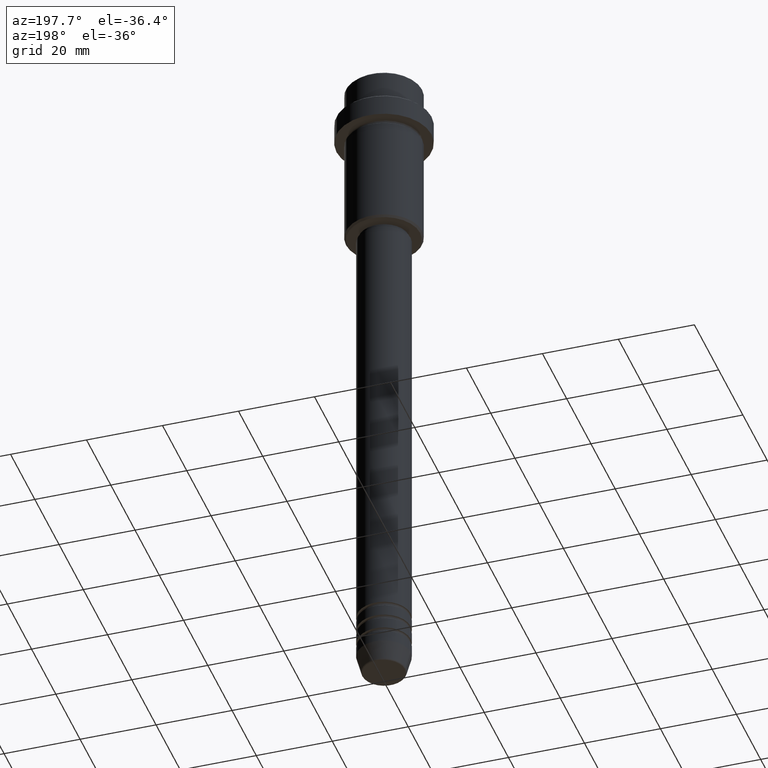
[diagram: clean part render]
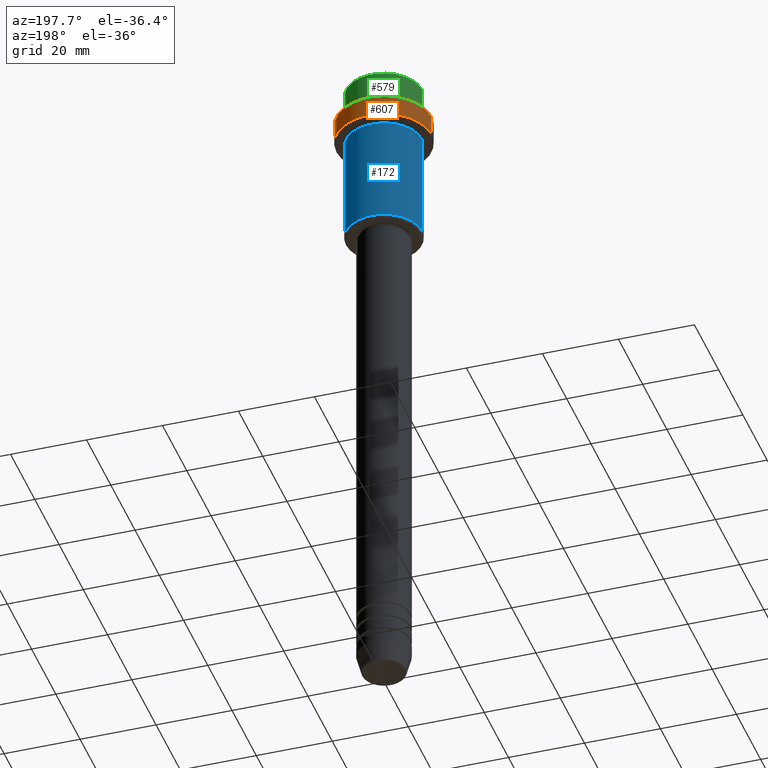
[diagram: same view with three faces highlighted in distinct colors, each labeled with its STEP entity id]
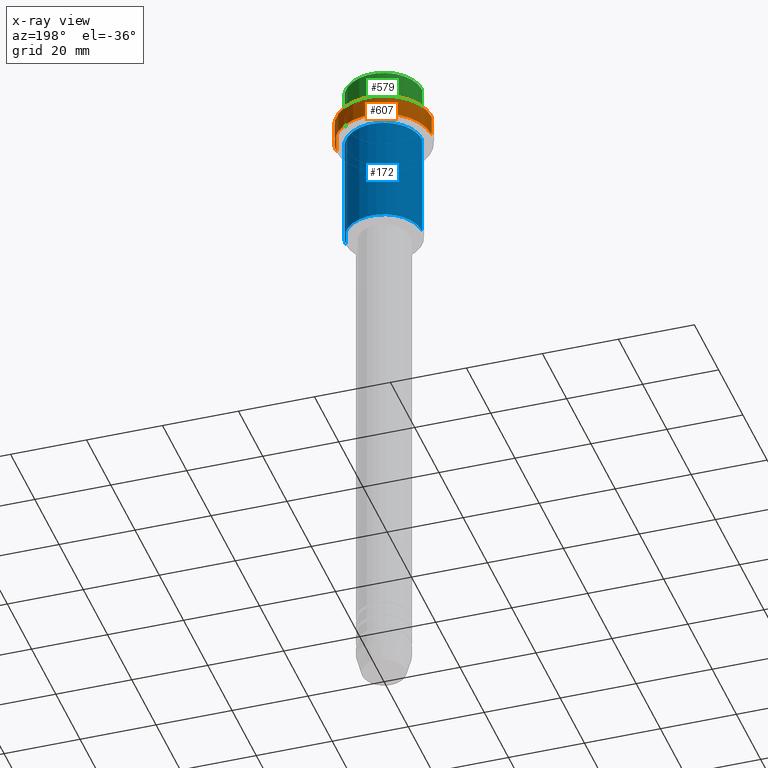
[diagram: x-ray of the same camera — body ghosted, the three highlighted faces saturated]
A machine part, auxiliary view with three faces highlighted in distinct colors.
The next image is the same camera in x-ray (body ghosted, the three faces saturated) — at least one of them is partly hidden behind the body in this view.
Their STEP definitions:

[orange] entity #607 — the highlighted cylindrical surface (partial cylindrical patch) has radius 12.5 mm, axis along (-0, -0, 1).
#55 = CARTESIAN_POINT ( 'NONE',  ( -12.50000000000000000, 1.530808498934191521E-15, -15.00000000000000178 ) ) ;
#150 = CARTESIAN_POINT ( 'NONE',  ( 0.000000000000000000, 0.000000000000000000, 0.000000000000000000 ) ) ;
#157 = VERTEX_POINT ( 'NONE', #55 ) ;
#222 = AXIS2_PLACEMENT_3D ( 'NONE', #780, #657, #239 ) ;
#239 = DIRECTION ( 'NONE',  ( 1.000000000000000000, 0.000000000000000000, 0.000000000000000000 ) ) ;
#245 = AXIS2_PLACEMENT_3D ( 'NONE', #150, #1253, #1248 ) ;
#289 = DIRECTION ( 'NONE',  ( -0.000000000000000000, -0.000000000000000000, 1.000000000000000000 ) ) ;
#332 = EDGE_CURVE ( 'NONE', #551, #157, #1233, .T. ) ;
#385 = CARTESIAN_POINT ( 'NONE',  ( -12.50000000000000000, 1.530808498934191521E-15, 0.000000000000000000 ) ) ;
#408 = DIRECTION ( 'NONE',  ( 0.000000000000000000, 0.000000000000000000, -1.000000000000000000 ) ) ;
#428 = CARTESIAN_POINT ( 'NONE',  ( 12.50000000000000000, 0.000000000000000000, 0.000000000000000000 ) ) ;
#454 = VERTEX_POINT ( 'NONE', #1300 ) ;
#485 = VERTEX_POINT ( 'NONE', #724 ) ;
#496 = EDGE_LOOP ( 'NONE', ( #1363, #1054, #1115, #725 ) ) ;
#514 = VECTOR ( 'NONE', #289, 1000.000000000000000 ) ;
#519 = CARTESIAN_POINT ( 'NONE',  ( 0.000000000000000000, 0.000000000000000000, -9.500000000000007105 ) ) ;
#521 = CARTESIAN_POINT ( 'NONE',  ( 12.50000000000000000, 0.000000000000000000, -15.00000000000000178 ) ) ;
#551 = VERTEX_POINT ( 'NONE', #521 ) ;
#605 = AXIS2_PLACEMENT_3D ( 'NONE', #519, #408, #850 ) ;
#607 = ADVANCED_FACE ( 'NONE', ( #1201 ), #641, .T. ) ;
#627 = EDGE_CURVE ( 'NONE', #157, #485, #849, .T. ) ;
#641 = CYLINDRICAL_SURFACE ( 'NONE', #245, 12.50000000000000000 ) ;
#657 = DIRECTION ( 'NONE',  ( -0.000000000000000000, -0.000000000000000000, 1.000000000000000000 ) ) ;
#724 = CARTESIAN_POINT ( 'NONE',  ( -12.50000000000000000, 1.530808498934191521E-15, -9.500000000000007105 ) ) ;
#725 = ORIENTED_EDGE ( 'NONE', *, *, #821, .F. ) ;
#780 = CARTESIAN_POINT ( 'NONE',  ( 0.000000000000000000, 0.000000000000000000, -15.00000000000000178 ) ) ;
#821 = EDGE_CURVE ( 'NONE', #551, #454, #1190, .T. ) ;
#849 = LINE ( 'NONE', #385, #514 ) ;
#850 = DIRECTION ( 'NONE',  ( 1.000000000000000000, 0.000000000000000000, 0.000000000000000000 ) ) ;
#931 = EDGE_CURVE ( 'NONE', #485, #454, #1344, .T. ) ;
#982 = VECTOR ( 'NONE', #1394, 1000.000000000000000 ) ;
#1054 = ORIENTED_EDGE ( 'NONE', *, *, #627, .T. ) ;
#1115 = ORIENTED_EDGE ( 'NONE', *, *, #931, .T. ) ;
#1190 = LINE ( 'NONE', #428, #982 ) ;
#1201 = FACE_OUTER_BOUND ( 'NONE', #496, .T. ) ;
#1233 = CIRCLE ( 'NONE', #222, 12.50000000000000000 ) ;
#1248 = DIRECTION ( 'NONE',  ( 1.000000000000000000, 0.000000000000000000, 0.000000000000000000 ) ) ;
#1253 = DIRECTION ( 'NONE',  ( -0.000000000000000000, -0.000000000000000000, 1.000000000000000000 ) ) ;
#1300 = CARTESIAN_POINT ( 'NONE',  ( 12.50000000000000000, 0.000000000000000000, -9.500000000000007105 ) ) ;
#1344 = CIRCLE ( 'NONE', #605, 12.50000000000000000 ) ;
#1363 = ORIENTED_EDGE ( 'NONE', *, *, #332, .T. ) ;
#1394 = DIRECTION ( 'NONE',  ( -0.000000000000000000, -0.000000000000000000, 1.000000000000000000 ) ) ;

[blue] entity #172 — the highlighted cylindrical surface (partial cylindrical patch) has radius 10 mm, axis along (-0, -0, 1).
#76 = EDGE_LOOP ( 'NONE', ( #82, #445, #930, #1105 ) ) ;
#82 = ORIENTED_EDGE ( 'NONE', *, *, #908, .T. ) ;
#103 = CARTESIAN_POINT ( 'NONE',  ( 10.00000000000000000, 0.000000000000000000, -16.00000000000000000 ) ) ;
#139 = EDGE_CURVE ( 'NONE', #690, #897, #1035, .T. ) ;
#152 = DIRECTION ( 'NONE',  ( -0.000000000000000000, -0.000000000000000000, 1.000000000000000000 ) ) ;
#158 = DIRECTION ( 'NONE',  ( -0.000000000000000000, -0.000000000000000000, 1.000000000000000000 ) ) ;
#172 = ADVANCED_FACE ( 'NONE', ( #1371 ), #1249, .T. ) ;
#225 = EDGE_CURVE ( 'NONE', #334, #1145, #959, .T. ) ;
#253 = DIRECTION ( 'NONE',  ( -0.000000000000000000, -0.000000000000000000, 1.000000000000000000 ) ) ;
#277 = CARTESIAN_POINT ( 'NONE',  ( -10.00000000000000000, 1.224646799147353256E-15, -16.00000000000000000 ) ) ;
#334 = VERTEX_POINT ( 'NONE', #991 ) ;
#387 = DIRECTION ( 'NONE',  ( 1.000000000000000000, 0.000000000000000000, 0.000000000000000000 ) ) ;
#409 = DIRECTION ( 'NONE',  ( -0.000000000000000000, -0.000000000000000000, 1.000000000000000000 ) ) ;
#445 = ORIENTED_EDGE ( 'NONE', *, *, #225, .T. ) ;
#525 = DIRECTION ( 'NONE',  ( -1.000000000000000000, 0.000000000000000000, 0.000000000000000000 ) ) ;
#616 = CARTESIAN_POINT ( 'NONE',  ( 0.000000000000000000, 0.000000000000000000, -44.50000000000000711 ) ) ;
#617 = CARTESIAN_POINT ( 'NONE',  ( -10.00000000000000000, 1.224646799147353256E-15, 0.000000000000000000 ) ) ;
#690 = VERTEX_POINT ( 'NONE', #1019 ) ;
#741 = DIRECTION ( 'NONE',  ( -0.000000000000000000, -0.000000000000000000, 1.000000000000000000 ) ) ;
#827 = DIRECTION ( 'NONE',  ( 1.000000000000000000, 0.000000000000000000, 0.000000000000000000 ) ) ;
#897 = VERTEX_POINT ( 'NONE', #103 ) ;
#908 = EDGE_CURVE ( 'NONE', #690, #334, #1235, .T. ) ;
#910 = AXIS2_PLACEMENT_3D ( 'NONE', #1151, #152, #387 ) ;
#930 = ORIENTED_EDGE ( 'NONE', *, *, #1139, .F. ) ;
#959 = LINE ( 'NONE', #617, #1048 ) ;
#991 = CARTESIAN_POINT ( 'NONE',  ( -10.00000000000000000, 1.224646799147353256E-15, -44.50000000000000711 ) ) ;
#1019 = CARTESIAN_POINT ( 'NONE',  ( 10.00000000000000000, 0.000000000000000000, -44.50000000000000711 ) ) ;
#1035 = LINE ( 'NONE', #1215, #1208 ) ;
#1048 = VECTOR ( 'NONE', #409, 1000.000000000000000 ) ;
#1105 = ORIENTED_EDGE ( 'NONE', *, *, #139, .F. ) ;
#1139 = EDGE_CURVE ( 'NONE', #897, #1145, #1404, .T. ) ;
#1145 = VERTEX_POINT ( 'NONE', #277 ) ;
#1151 = CARTESIAN_POINT ( 'NONE',  ( 0.000000000000000000, 0.000000000000000000, 0.000000000000000000 ) ) ;
#1187 = AXIS2_PLACEMENT_3D ( 'NONE', #616, #741, #525 ) ;
#1208 = VECTOR ( 'NONE', #253, 1000.000000000000000 ) ;
#1215 = CARTESIAN_POINT ( 'NONE',  ( 10.00000000000000000, 0.000000000000000000, 0.000000000000000000 ) ) ;
#1235 = CIRCLE ( 'NONE', #1187, 10.00000000000000000 ) ;
#1249 = CYLINDRICAL_SURFACE ( 'NONE', #910, 10.00000000000000000 ) ;
#1339 = AXIS2_PLACEMENT_3D ( 'NONE', #1350, #158, #827 ) ;
#1350 = CARTESIAN_POINT ( 'NONE',  ( 0.000000000000000000, 0.000000000000000000, -16.00000000000000000 ) ) ;
#1371 = FACE_OUTER_BOUND ( 'NONE', #76, .T. ) ;
#1404 = CIRCLE ( 'NONE', #1339, 10.00000000000000000 ) ;

[green] entity #579 — the highlighted cylindrical surface (partial cylindrical patch) has radius 10 mm, axis along (-0, -0, 1).
#14 = AXIS2_PLACEMENT_3D ( 'NONE', #528, #1083, #325 ) ;
#18 = VECTOR ( 'NONE', #1070, 1000.000000000000000 ) ;
#24 = DIRECTION ( 'NONE',  ( 1.000000000000000000, 0.000000000000000000, 0.000000000000000000 ) ) ;
#64 = VECTOR ( 'NONE', #415, 1000.000000000000000 ) ;
#75 = CYLINDRICAL_SURFACE ( 'NONE', #1159, 9.999999999999998224 ) ;
#78 = EDGE_CURVE ( 'NONE', #1191, #502, #447, .T. ) ;
#220 = CARTESIAN_POINT ( 'NONE',  ( 0.000000000000000000, 0.000000000000000000, 0.000000000000000000 ) ) ;
#243 = ORIENTED_EDGE ( 'NONE', *, *, #896, .F. ) ;
#257 = EDGE_LOOP ( 'NONE', ( #1110, #369, #263, #243 ) ) ;
#263 = ORIENTED_EDGE ( 'NONE', *, *, #78, .T. ) ;
#316 = LINE ( 'NONE', #971, #64 ) ;
#325 = DIRECTION ( 'NONE',  ( 1.000000000000000000, 0.000000000000000000, 0.000000000000000000 ) ) ;
#369 = ORIENTED_EDGE ( 'NONE', *, *, #442, .T. ) ;
#395 = CIRCLE ( 'NONE', #860, 9.999999999999998224 ) ;
#415 = DIRECTION ( 'NONE',  ( -0.000000000000000000, -0.000000000000000000, 1.000000000000000000 ) ) ;
#431 = VERTEX_POINT ( 'NONE', #863 ) ;
#442 = EDGE_CURVE ( 'NONE', #736, #1191, #316, .T. ) ;
#447 = CIRCLE ( 'NONE', #14, 9.999999999999998224 ) ;
#456 = EDGE_CURVE ( 'NONE', #431, #736, #395, .T. ) ;
#502 = VERTEX_POINT ( 'NONE', #823 ) ;
#523 = FACE_OUTER_BOUND ( 'NONE', #257, .T. ) ;
#528 = CARTESIAN_POINT ( 'NONE',  ( 0.000000000000000000, 0.000000000000000000, -0.4999999999999970024 ) ) ;
#579 = ADVANCED_FACE ( 'NONE', ( #523 ), #75, .T. ) ;
#730 = LINE ( 'NONE', #981, #18 ) ;
#736 = VERTEX_POINT ( 'NONE', #799 ) ;
#750 = CARTESIAN_POINT ( 'NONE',  ( 0.000000000000000000, 0.000000000000000000, -7.999999999999998224 ) ) ;
#799 = CARTESIAN_POINT ( 'NONE',  ( -9.999999999999998224, 1.224646799147353059E-15, -7.999999999999998224 ) ) ;
#823 = CARTESIAN_POINT ( 'NONE',  ( 9.999999999999998224, 0.000000000000000000, -0.4999999999999970024 ) ) ;
#860 = AXIS2_PLACEMENT_3D ( 'NONE', #750, #1119, #24 ) ;
#863 = CARTESIAN_POINT ( 'NONE',  ( 9.999999999999998224, 0.000000000000000000, -7.999999999999998224 ) ) ;
#873 = DIRECTION ( 'NONE',  ( -0.000000000000000000, -0.000000000000000000, 1.000000000000000000 ) ) ;
#896 = EDGE_CURVE ( 'NONE', #431, #502, #730, .T. ) ;
#971 = CARTESIAN_POINT ( 'NONE',  ( -9.999999999999998224, 1.224646799147353059E-15, 0.000000000000000000 ) ) ;
#981 = CARTESIAN_POINT ( 'NONE',  ( 9.999999999999998224, 0.000000000000000000, 0.000000000000000000 ) ) ;
#1070 = DIRECTION ( 'NONE',  ( -0.000000000000000000, -0.000000000000000000, 1.000000000000000000 ) ) ;
#1083 = DIRECTION ( 'NONE',  ( 0.000000000000000000, 0.000000000000000000, -1.000000000000000000 ) ) ;
#1091 = DIRECTION ( 'NONE',  ( 1.000000000000000000, 0.000000000000000000, 0.000000000000000000 ) ) ;
#1110 = ORIENTED_EDGE ( 'NONE', *, *, #456, .T. ) ;
#1119 = DIRECTION ( 'NONE',  ( -0.000000000000000000, -0.000000000000000000, 1.000000000000000000 ) ) ;
#1159 = AXIS2_PLACEMENT_3D ( 'NONE', #220, #873, #1091 ) ;
#1191 = VERTEX_POINT ( 'NONE', #1263 ) ;
#1263 = CARTESIAN_POINT ( 'NONE',  ( -9.999999999999998224, 1.224646799147353059E-15, -0.4999999999999970024 ) ) ;